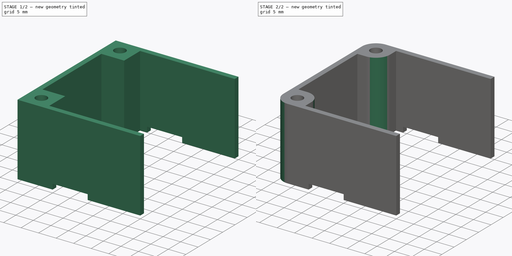
[diagram: build sequence overview — one tinted view per stage of 2, left to right]
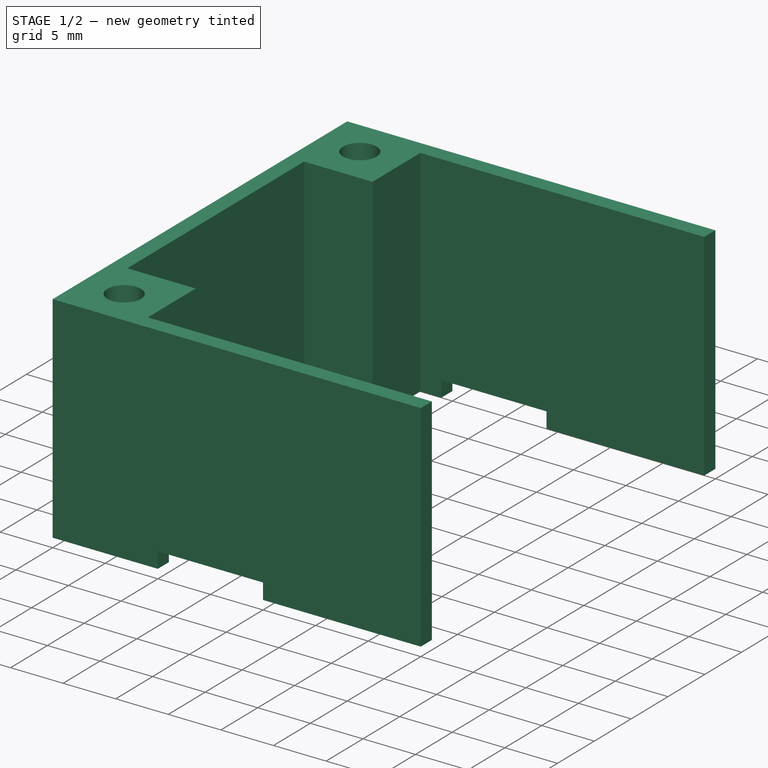
[diagram: stage 1 of 2 — iso view after this stage's code; geometry added in this stage tinted green]
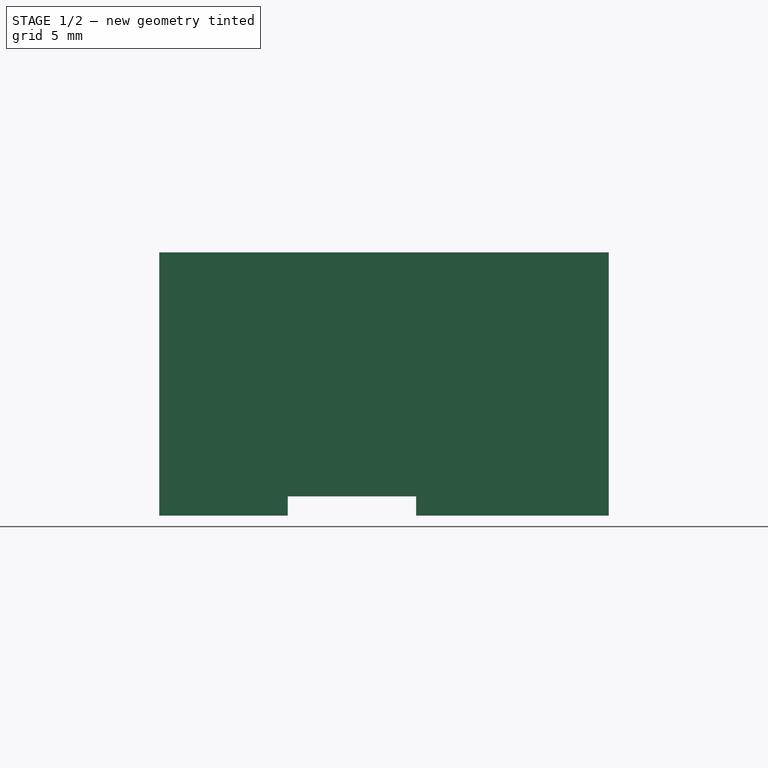
[diagram: stage 1 of 2 — front view after this stage's code; geometry added in this stage tinted green]
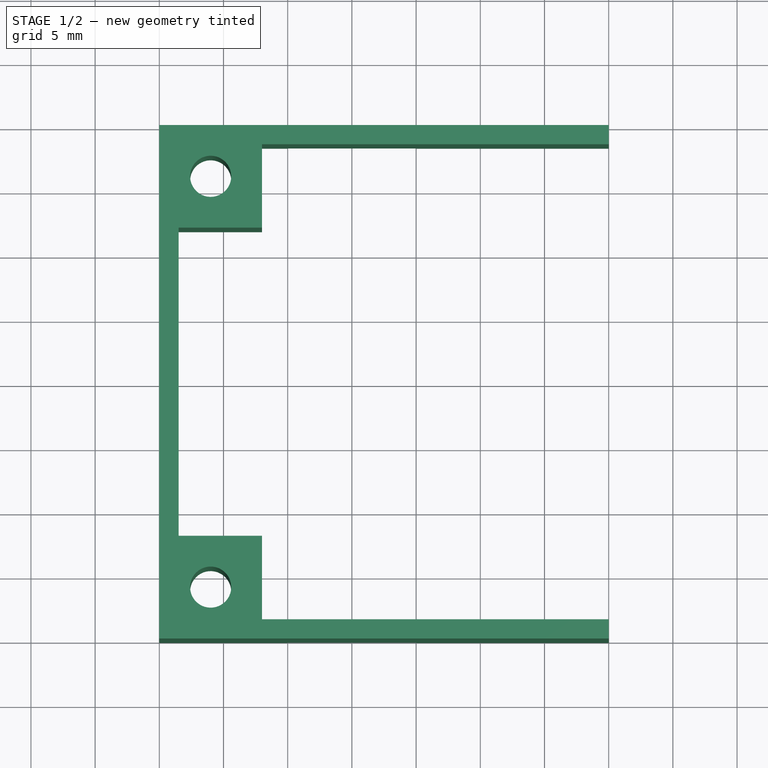
[diagram: stage 1 of 2 — top view after this stage's code; geometry added in this stage tinted green]
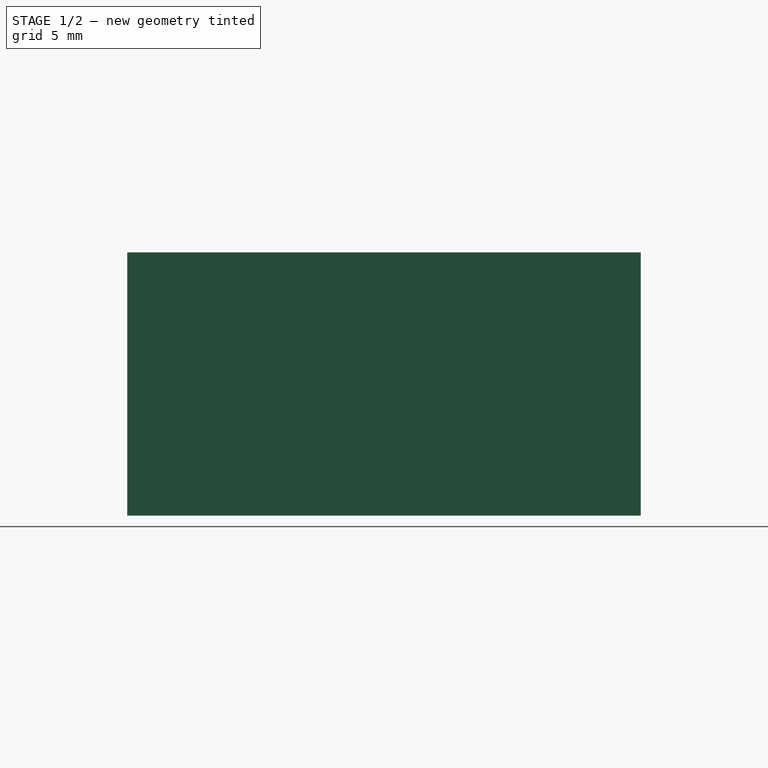
[diagram: stage 1 of 2 — right view after this stage's code; geometry added in this stage tinted green]
FCSTD DOCUMENT  (FreeCAD 0.18R14014 (Git))
Label: BackStand_H20.5mm
License: All rights reserved
LicenseURL: http://en.wikipedia.org/wiki/All_rights_reserved
objects: Sketcher::SketchObject×2, PartDesign::Pad×1, PartDesign::Pocket×1, PartDesign::Fillet×1, PartDesign::Body×1, App::Part×1
note: 8 computed .brp shape members not serialized (recipe doc carries the construction recipe); baked Part::Feature solids carry a one-line shape summary decoded from their .brp

FEATURE [Sketcher::SketchObject] Sketch  label="BS_BaseSketch"
  MapMode = 5
  Support = -> [XY_Plane001]
  sketch-geometry (18):
    g0: LineSegment StartX=0 StartY=12 StartZ=0 EndX=0 EndY=20 EndZ=0
    g1: LineSegment StartX=0 StartY=20 StartZ=0 EndX=35 EndY=20 EndZ=0
    g2: LineSegment StartX=8 StartY=12 StartZ=0 EndX=1.5 EndY=12 EndZ=0
    g3: LineSegment StartX=1.5 StartY=12 StartZ=0 EndX=1.5 EndY=-12 EndZ=0
    g4: LineSegment StartX=1.5 StartY=-12 StartZ=0 EndX=8 EndY=-12 EndZ=0
    g5: LineSegment StartX=35 StartY=-20 StartZ=0 EndX=0 EndY=-20 EndZ=0
    g6: LineSegment StartX=0 StartY=-20 StartZ=0 EndX=0 EndY=-12 EndZ=0
    g7: LineSegment StartX=0 StartY=-12 StartZ=0 EndX=0 EndY=12 EndZ=0
    g8: Circle CenterX=4 CenterY=16 CenterZ=0 NormalX=0 NormalY=0 NormalZ=1 AngleXU=0 Radius=1.6
    g9: Circle CenterX=4 CenterY=-16 CenterZ=0 NormalX=0 NormalY=0 NormalZ=1 AngleXU=0 Radius=1.6
    g10: LineSegment StartX=8 StartY=12 StartZ=0 EndX=8 EndY=18.5 EndZ=0
    g11: LineSegment StartX=8 StartY=-12 StartZ=0 EndX=8 EndY=-18.5 EndZ=0
    g12: LineSegment StartX=8 StartY=18.5 StartZ=0 EndX=35 EndY=18.5 EndZ=0
    g13: LineSegment StartX=35 StartY=18.5 StartZ=0 EndX=35 EndY=20 EndZ=0
    g14: LineSegment StartX=35 StartY=-20 StartZ=0 EndX=35 EndY=-18.5 EndZ=0
    g15: LineSegment StartX=35 StartY=-18.5 StartZ=0 EndX=8 EndY=-18.5 EndZ=0
    g16: LineSegment [constr] StartX=0 StartY=20 StartZ=0 EndX=4 EndY=16 EndZ=0
    g17: LineSegment [constr] StartX=4 StartY=16 StartZ=0 EndX=8 EndY=12 EndZ=0
  constraints (44):
    c: PointOnObject(g0,g-2)
    c: PointOnObject(g0,g-2)
    c: Coincident(g1,g0)
    c: Coincident(g3,g2)
    c: Coincident(g4,g3)
    c: Coincident(g6,g5)
    c: Coincident(g7,g6)
    c: Coincident(g7,g0)
    c: Horizontal(g2)
    c: Symmetric(g2,g3,g-1)
    c: Symmetric(g2,g4,g-1)
    c: Symmetric(g1,g5,g-1)
    c: Symmetric(g0,g5,g-1)
    c: Symmetric(g0,g6,g-1)
    c: Distance(g0,g5) = 40
    c: Distance(g0,g2) = 1.5
    c: Equal(g8,g9)
    c: Symmetric(g8,g9,g-1)
    c: Radius(g8) = 1.6
    c: Coincident(g10,g2)
    c: Vertical(g10)
    c: Coincident(g11,g4)
    c: Symmetric(g10,g11,g-1)
    c: Coincident(g12,g10)
    c: Horizontal(g12)
    c: Coincident(g13,g12)
    c: Vertical(g13)
    c: Distance(g0) = 8
    c: Horizontal(g1)
    c: Coincident(g1,g13)
    c: Coincident(g14,g5)
    c: Coincident(g15,g14)
    c: Coincident(g15,g11)
    c: Symmetric(g12,g14,g-1)
    c: Distance(g13) = 1.5
    c: Distance(g2,g1) = 8
    c: Distance(g2,g0) = 8
    c: Coincident(g16,g0)
    c: Coincident(g16,g8)
    c: Coincident(g17,g8)
    c: Coincident(g17,g2)
    c: Parallel(g17,g16)
    c: Equal(g16,g17)
    c: Distance(g1) = 35
FEATURE [PartDesign::Pad] Pad  label="BS_BasePad"
  Length = 20.5
  Length2 = 100
  Profile = -> Sketch
  Type = 0
FEATURE [Sketcher::SketchObject] Sketch001  label="BS_MotorClampingWashersCutSketch"
  MapMode = 5
  Support = -> [XY_Plane001]
  sketch-geometry (4):
    g0: LineSegment StartX=10 StartY=50 StartZ=0 EndX=20 EndY=50 EndZ=0
    g1: LineSegment StartX=20 StartY=50 StartZ=0 EndX=20 EndY=-50 EndZ=0
    g2: LineSegment StartX=20 StartY=-50 StartZ=0 EndX=10 EndY=-50 EndZ=0
    g3: LineSegment StartX=10 StartY=-50 StartZ=0 EndX=10 EndY=50 EndZ=0
  constraints (11):
    c: Coincident(g0,g1)
    c: Coincident(g1,g2)
    c: Coincident(g2,g3)
    c: Coincident(g3,g0)
    c: Horizontal(g0)
    c: Horizontal(g2)
    c: Vertical(g1)
    c: Distance(g1) = 100
    c: Distance(g0) = 10
    c: DistanceX(g-2,g0) = 10
    c: Symmetric(g0,g2,g-1)
FEATURE [PartDesign::Pocket] Pocket  label="BS_WashersPocket"
  BaseFeature = -> Pad
  Length = 1.5
  Length2 = 100
  Profile = -> Sketch001
  Reversed = true
  Type = 0
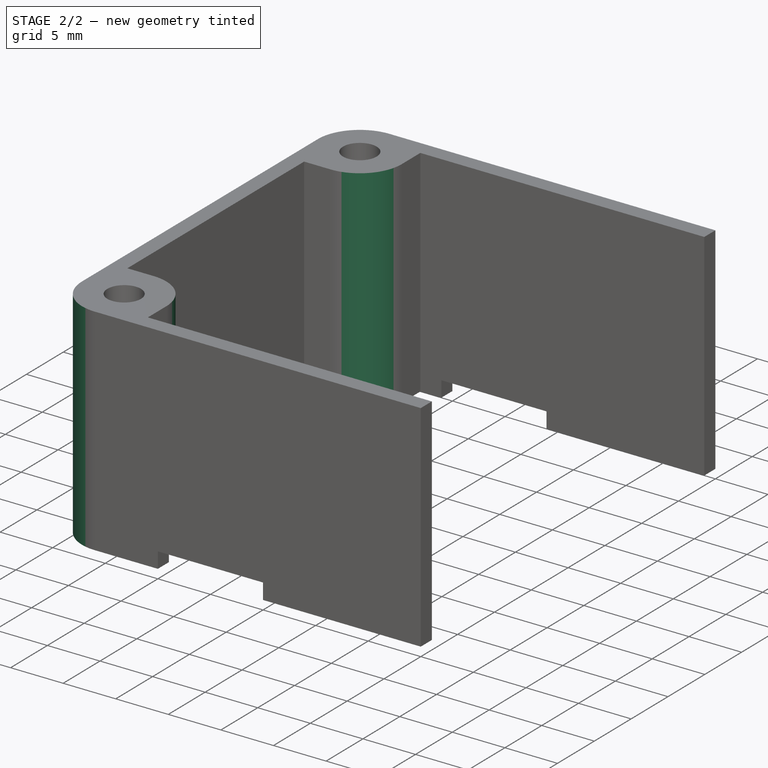
[diagram: stage 2 of 2 — iso view after this stage's code; geometry added in this stage tinted green]
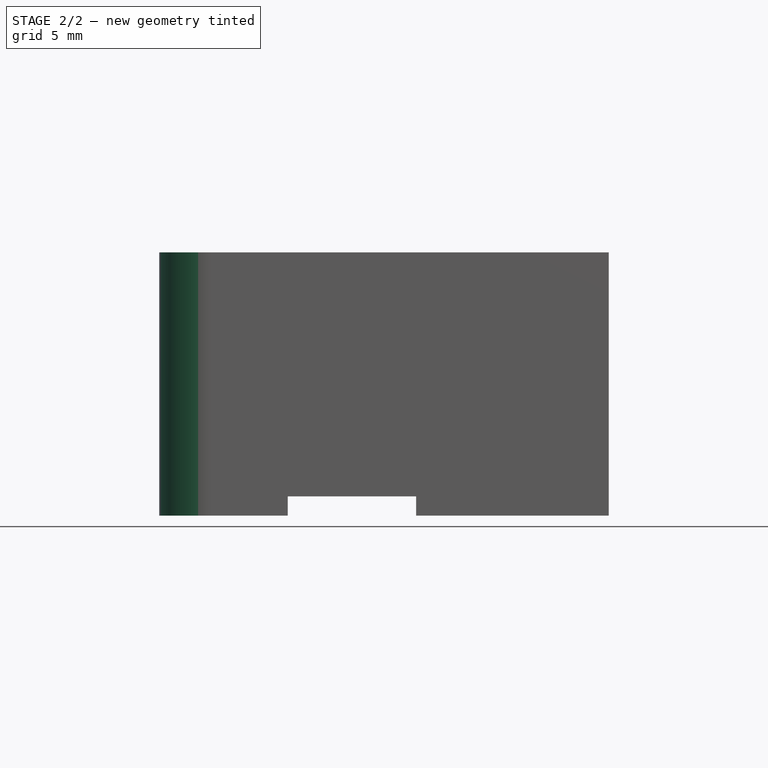
[diagram: stage 2 of 2 — front view after this stage's code; geometry added in this stage tinted green]
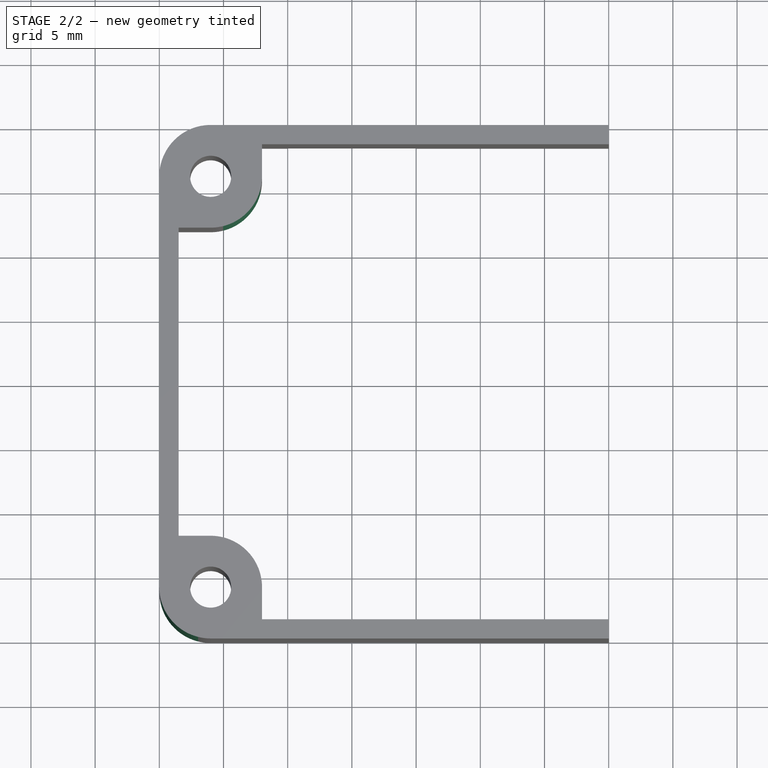
[diagram: stage 2 of 2 — top view after this stage's code; geometry added in this stage tinted green]
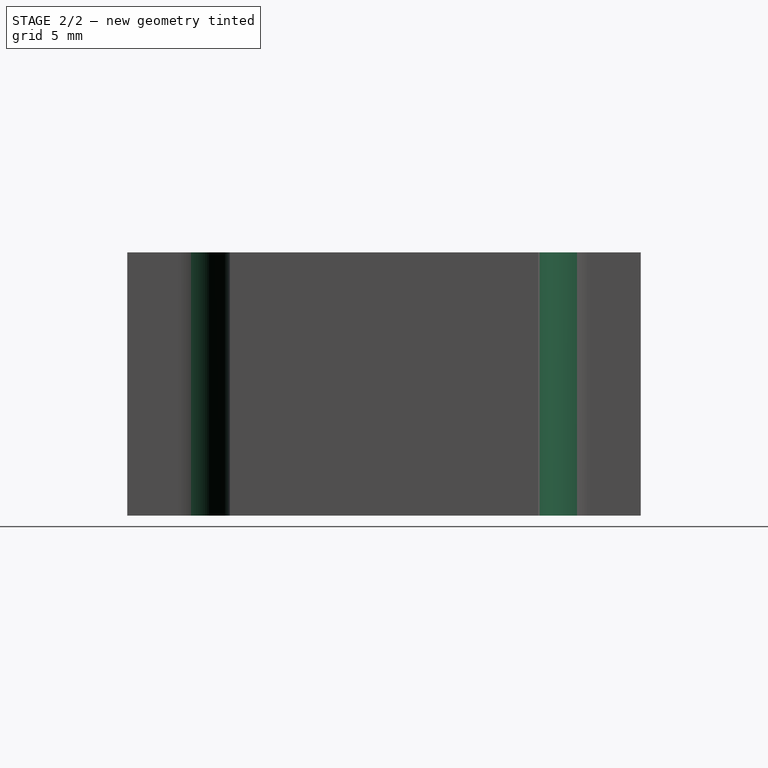
[diagram: stage 2 of 2 — right view after this stage's code; geometry added in this stage tinted green]
FEATURE [PartDesign::Fillet] Fillet  label="BS_StandFillet"
  Base = -> Pocket [Edge6,Edge50,Edge53,Edge66]
  BaseFeature = -> Pocket
  Radius = 4
FEATURE [PartDesign::Body] Body  label="BackStandBody"
  Group = -> [Sketch,Pad,Sketch001,Pocket,Fillet]
  Origin = -> Origin001
  Tip = -> Fillet
FEATURE [App::Part] Part  label="BackStandPart"
  Group = -> [Body]
  License = CC BY 3.0
  LicenseURL = http://creativecommons.org/licenses/by/3.0/
  Origin = -> Origin
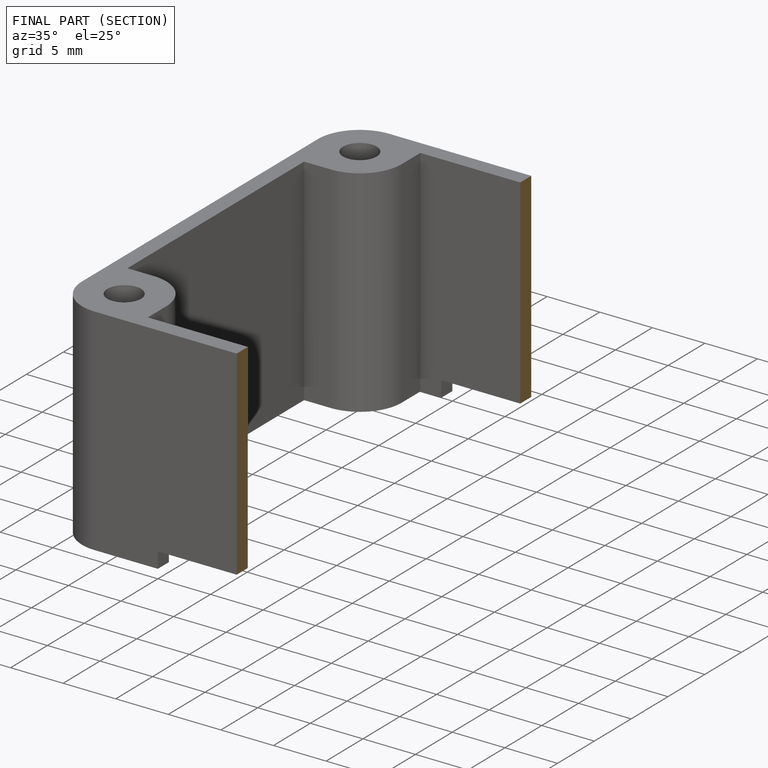
[diagram: finished part — half-section view (interior)]
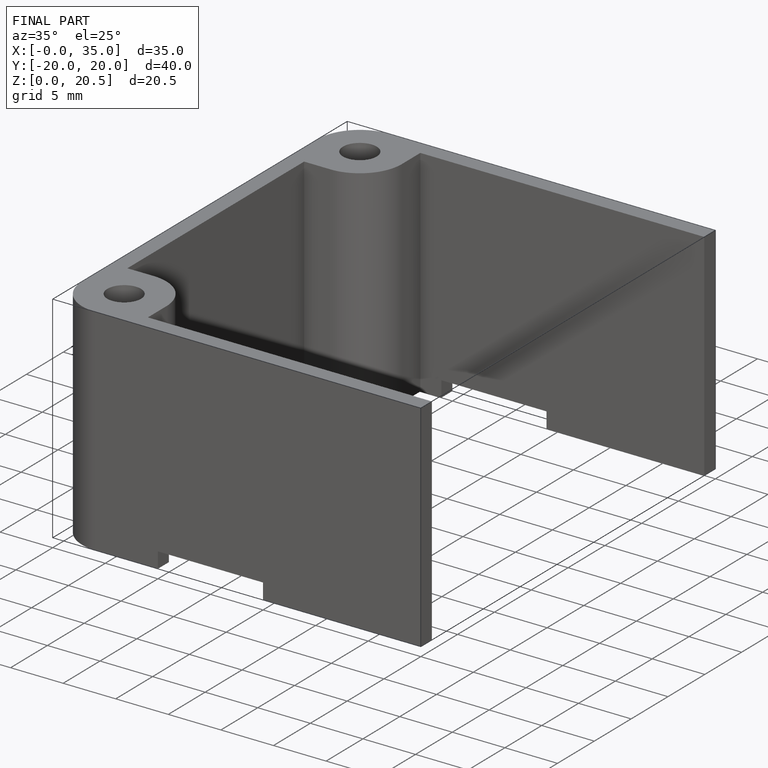
[diagram: finished part — iso view with bounding-box wireframe]
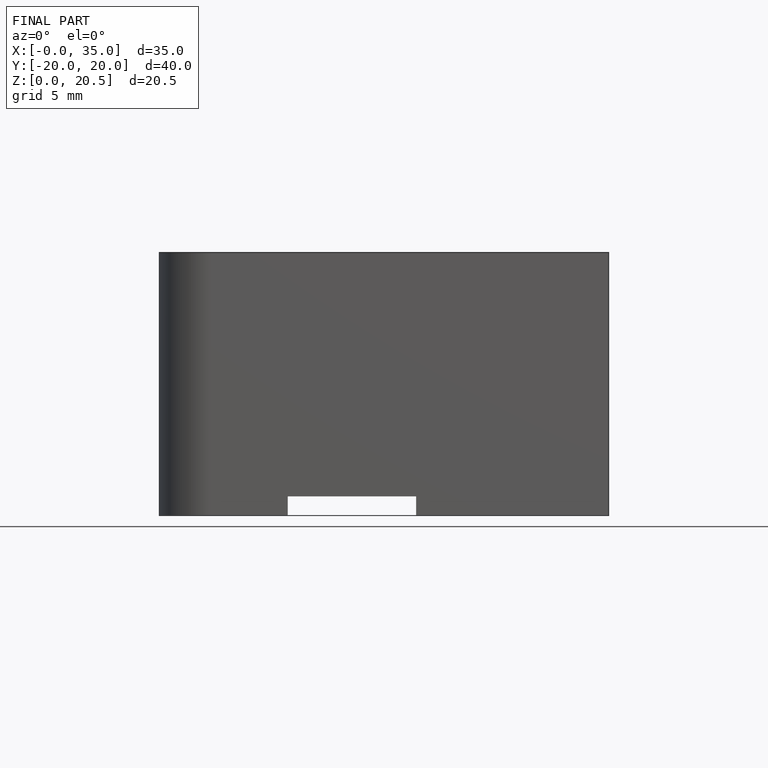
[diagram: finished part — front view with bounding-box wireframe]
